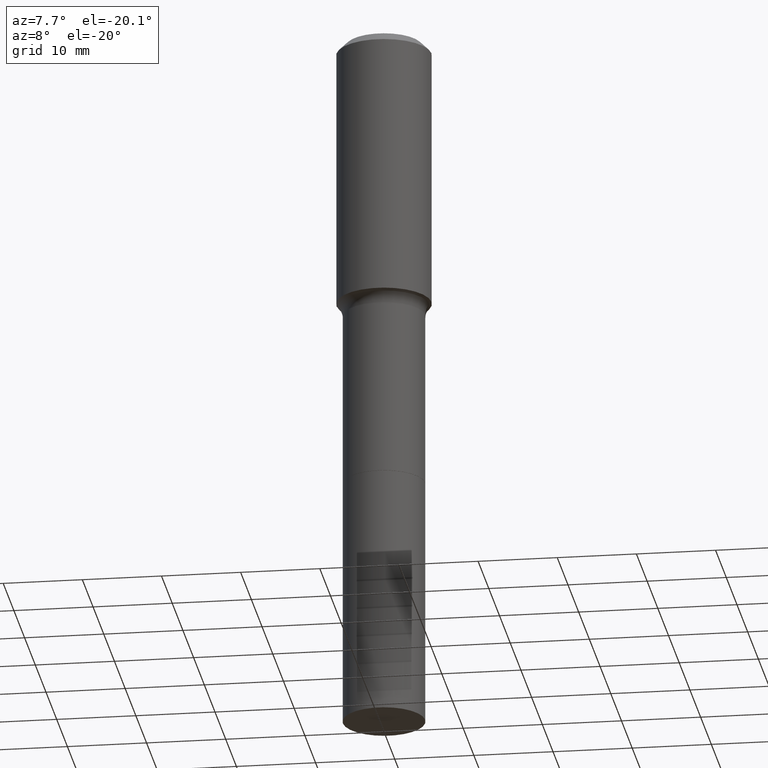
[diagram: clean part render]
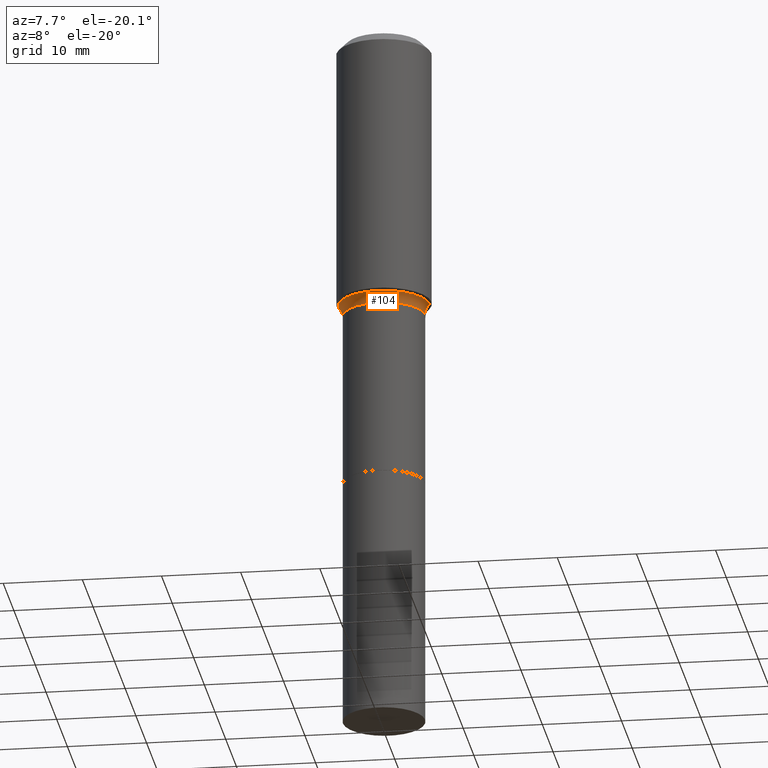
[diagram: same view with one face highlighted and labeled with its STEP entity id]
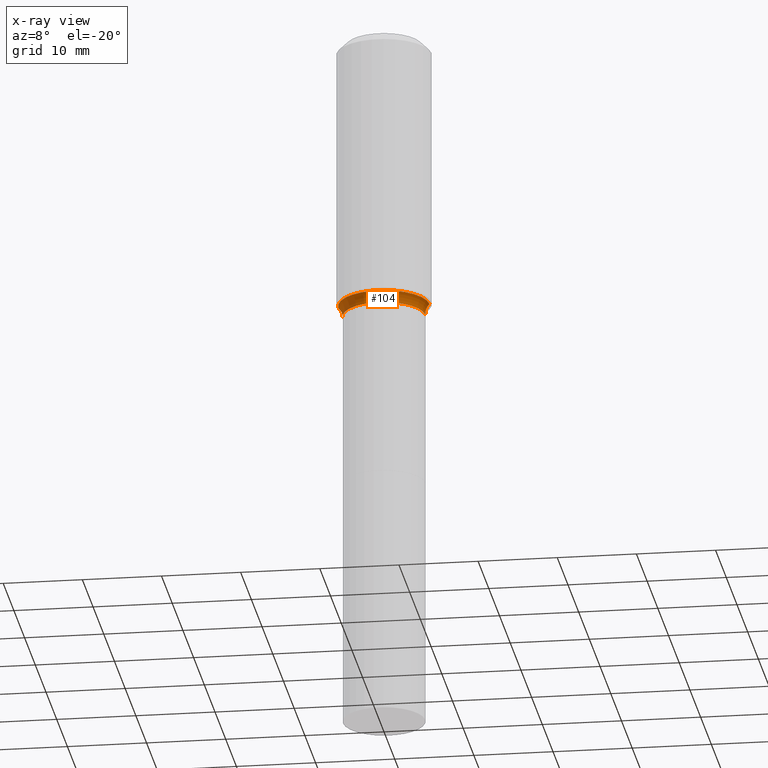
[diagram: x-ray of the same camera — body ghosted, the highlighted face saturated]
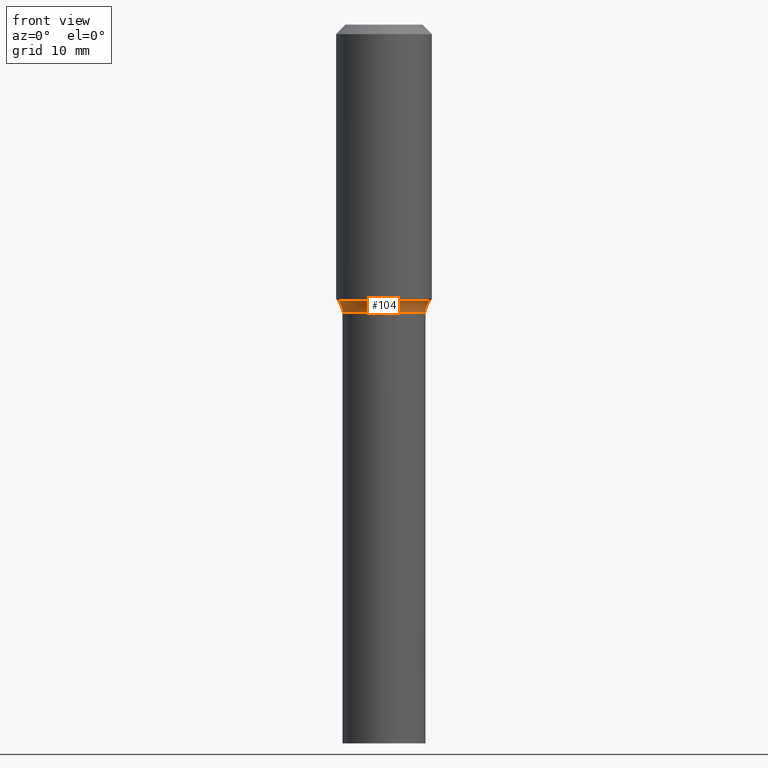
[diagram: same view with one face highlighted and labeled with its STEP entity id]
A machine part, auxiliary view. The second image highlights one B-rep face of the part: STEP entity #104.
The next image is the same camera in x-ray: the body ghosted, the highlighted face saturated — about 0% of this face is hidden behind the body in this view.
A second angle (front view) of the same face is appended — the face is thin or edge-on in the first view.
In plain terms, the highlighted toroidal blend (fillet) surface has major radius 7.2314 mm and minor (blend) radius 2.032 mm.
Its self-contained STEP definition (entity closure, byte-faithful):
#27 = VERTEX_POINT ( 'NONE', #510 ) ;
#35 = DIRECTION ( 'NONE',  ( -1.000000000000000000, 7.105427357601001859E-15, 0.000000000000000000 ) ) ;
#65 = DIRECTION ( 'NONE',  ( 7.105427357601001859E-15, 1.000000000000000000, -3.491481338843145583E-15 ) ) ;
#67 = ORIENTED_EDGE ( 'NONE', *, *, #176, .F. ) ;
#78 = TOROIDAL_SURFACE ( 'NONE', #361, 0.2846999999999998976, 0.08000000000000007105 ) ;
#84 = FACE_OUTER_BOUND ( 'NONE', #414, .T. ) ;
#85 = CARTESIAN_POINT ( 'NONE',  ( 0.2846999999999998976, -6.936525975879669704E-15, -1.417300000000000004 ) ) ;
#86 = CIRCLE ( 'NONE', #120, 0.08000000000000002942 ) ;
#87 = CIRCLE ( 'NONE', #444, 0.2261917038704663319 ) ;
#92 = DIRECTION ( 'NONE',  ( -6.982962677686266711E-15, -1.000000000000000000, 3.491481338843145583E-15 ) ) ;
#94 = EDGE_CURVE ( 'NONE', #27, #217, #102, .T. ) ;
#102 = CIRCLE ( 'NONE', #489, 0.08000000000000002942 ) ;
#104 = ADVANCED_FACE ( 'NONE', ( #84 ), #78, .F. ) ;
#116 = DIRECTION ( 'NONE',  ( 1.000000000000000000, -6.982962677686267499E-15, 4.883557194083114022E-29 ) ) ;
#120 = AXIS2_PLACEMENT_3D ( 'NONE', #85, #92, #446 ) ;
#126 = CIRCLE ( 'NONE', #360, 0.2046999999999999098 ) ;
#147 = DIRECTION ( 'NONE',  ( -2.445468806185136597E-29, 3.491481338843145583E-15, 1.000000000000000000 ) ) ;
#176 = EDGE_CURVE ( 'NONE', #27, #357, #87, .T. ) ;
#182 = ORIENTED_EDGE ( 'NONE', *, *, #94, .T. ) ;
#217 = VERTEX_POINT ( 'NONE', #224 ) ;
#224 = CARTESIAN_POINT ( 'NONE',  ( -0.2046999999999999098, -5.032865921536581155E-15, -1.417300000000000004 ) ) ;
#247 = DIRECTION ( 'NONE',  ( 1.000000000000000000, -6.982962677686265922E-15, 0.000000000000000000 ) ) ;
#250 = DIRECTION ( 'NONE',  ( -2.445468806185136597E-29, 3.491481338843145583E-15, 1.000000000000000000 ) ) ;
#293 = ORIENTED_EDGE ( 'NONE', *, *, #423, .F. ) ;
#305 = CARTESIAN_POINT ( 'NONE',  ( -0.2846999999999998976, -2.925561332833385546E-15, -1.417300000000000004 ) ) ;
#323 = CARTESIAN_POINT ( 'NONE',  ( 0.2261917038704662208, -6.337469963889731936E-15, -1.362740131195000037 ) ) ;
#326 = CARTESIAN_POINT ( 'NONE',  ( 0.2046999999999999098, -6.377888961664768052E-15, -1.417300000000000004 ) ) ;
#336 = CARTESIAN_POINT ( 'NONE',  ( 3.465962939006193759E-29, -4.948476501542390442E-15, -1.417300000000000004 ) ) ;
#357 = VERTEX_POINT ( 'NONE', #323 ) ;
#360 = AXIS2_PLACEMENT_3D ( 'NONE', #336, #372, #417 ) ;
#361 = AXIS2_PLACEMENT_3D ( 'NONE', #517, #147, #116 ) ;
#370 = VERTEX_POINT ( 'NONE', #326 ) ;
#372 = DIRECTION ( 'NONE',  ( -2.445468806185136597E-29, 3.491481338843145583E-15, 1.000000000000000000 ) ) ;
#414 = EDGE_LOOP ( 'NONE', ( #67, #182, #450, #293 ) ) ;
#417 = DIRECTION ( 'NONE',  ( 1.000000000000000000, -6.982962677686264344E-15, 0.000000000000000000 ) ) ;
#423 = EDGE_CURVE ( 'NONE', #357, #370, #86, .T. ) ;
#444 = AXIS2_PLACEMENT_3D ( 'NONE', #494, #250, #247 ) ;
#446 = DIRECTION ( 'NONE',  ( 1.000000000000000000, -6.982962677686269077E-15, 0.000000000000000000 ) ) ;
#450 = ORIENTED_EDGE ( 'NONE', *, *, #516, .T. ) ;
#489 = AXIS2_PLACEMENT_3D ( 'NONE', #305, #65, #35 ) ;
#494 = CARTESIAN_POINT ( 'NONE',  ( 3.332538481774012867E-29, -4.757981737760002382E-15, -1.362740131195000037 ) ) ;
#510 = CARTESIAN_POINT ( 'NONE',  ( -0.2261917038704662208, -3.150793017016407672E-15, -1.362740131195000037 ) ) ;
#516 = EDGE_CURVE ( 'NONE', #217, #370, #126, .T. ) ;
#517 = CARTESIAN_POINT ( 'NONE',  ( 3.465962939006193759E-29, -4.948476501542390442E-15, -1.417300000000000004 ) ) ;